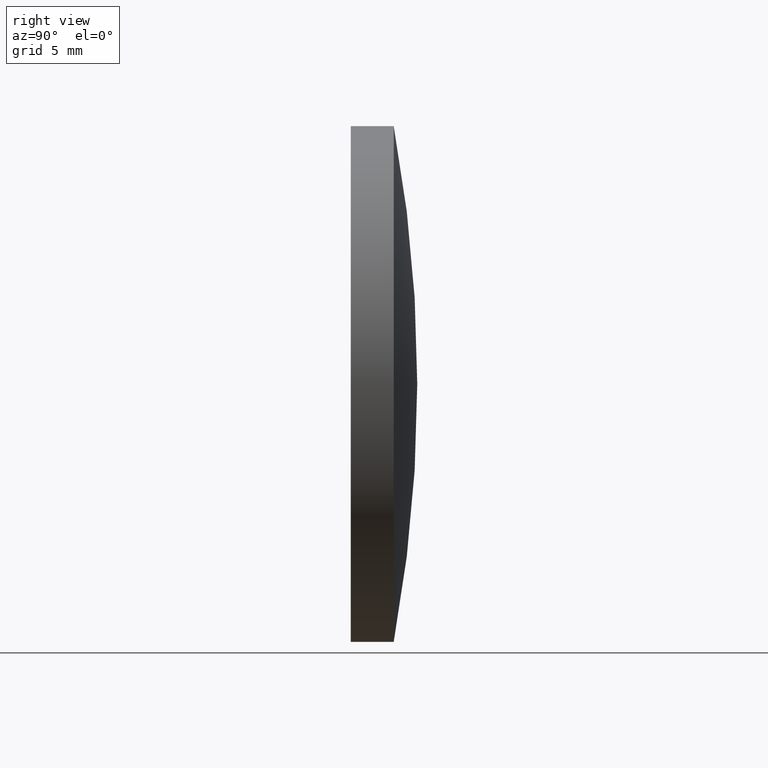
[diagram: clean part render]
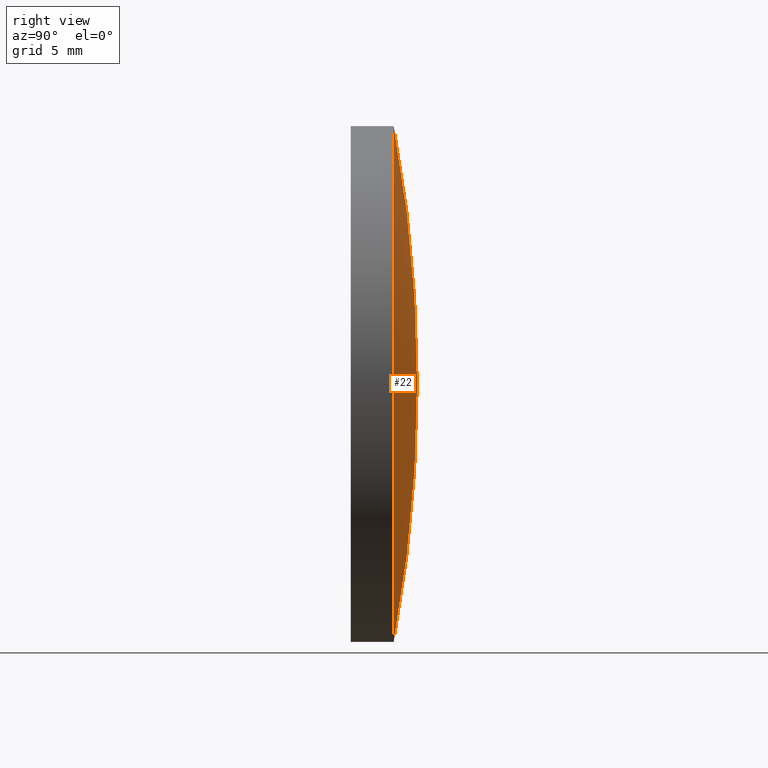
[diagram: same view with one face highlighted and labeled with its STEP entity id]
A machine part, right view. The second image highlights one B-rep face of the part: STEP entity #22.
In plain terms, the highlighted toroidal blend (fillet) surface has major radius 0.0166 mm and minor (blend) radius 82.62 mm.
Its self-contained STEP definition (entity closure, byte-faithful):
#12 = VERTEX_POINT ( 'NONE', #33 ) ;
#14 = EDGE_LOOP ( 'NONE', ( #61, #186, #110 ) ) ;
#22 = ADVANCED_FACE ( 'NONE', ( #197 ), #24, .T. ) ;
#24 = TOROIDAL_SURFACE ( 'NONE', #124, 0.01660348570795607687, 82.62000000000000455 ) ;
#32 = VERTEX_POINT ( 'NONE', #177 ) ;
#33 = CARTESIAN_POINT ( 'NONE',  ( 0.000000000000000000, 3.870000000000000107, 0.000000000000000000 ) ) ;
#35 = DIRECTION ( 'NONE',  ( 0.000000000000000000, 0.000000000000000000, 1.000000000000000000 ) ) ;
#48 = DIRECTION ( 'NONE',  ( -0.000000000000000000, 1.000000000000000000, -0.000000000000000000 ) ) ;
#54 = CIRCLE ( 'NONE', #174, 15.00000000000000000 ) ;
#59 = DIRECTION ( 'NONE',  ( 0.000000000000000000, 0.000000000000000000, 1.000000000000000000 ) ) ;
#61 = ORIENTED_EDGE ( 'NONE', *, *, #71, .T. ) ;
#71 = EDGE_CURVE ( 'NONE', #94, #32, #54, .T. ) ;
#78 = EDGE_CURVE ( 'NONE', #94, #12, #111, .T. ) ;
#80 = CARTESIAN_POINT ( 'NONE',  ( 2.033340562693723258E-18, -78.74999833166459950, -0.01660348570795607687 ) ) ;
#81 = DIRECTION ( 'NONE',  ( -0.000000000000000000, 1.000000000000000000, -0.000000000000000000 ) ) ;
#92 = CIRCLE ( 'NONE', #162, 82.62000000000000455 ) ;
#94 = VERTEX_POINT ( 'NONE', #163 ) ;
#97 = CARTESIAN_POINT ( 'NONE',  ( 0.000000000000000000, -78.74999833166459950, 0.01660348570795607687 ) ) ;
#110 = ORIENTED_EDGE ( 'NONE', *, *, #78, .F. ) ;
#111 = CIRCLE ( 'NONE', #194, 82.62000000000000455 ) ;
#114 = DIRECTION ( 'NONE',  ( -1.000000000000000000, 0.000000000000000000, 0.000000000000000000 ) ) ;
#124 = AXIS2_PLACEMENT_3D ( 'NONE', #148, #81, #59 ) ;
#135 = DIRECTION ( 'NONE',  ( 1.224646799147353207E-16, 0.000000000000000000, -1.000000000000000000 ) ) ;
#148 = CARTESIAN_POINT ( 'NONE',  ( 0.000000000000000000, -78.74999833166459950, 0.000000000000000000 ) ) ;
#155 = EDGE_CURVE ( 'NONE', #32, #12, #92, .T. ) ;
#156 = CARTESIAN_POINT ( 'NONE',  ( 0.000000000000000000, 2.499999999999998224, 0.000000000000000000 ) ) ;
#162 = AXIS2_PLACEMENT_3D ( 'NONE', #80, #172, #135 ) ;
#163 = CARTESIAN_POINT ( 'NONE',  ( 0.000000000000000000, 2.500000000000000444, 15.00000000000000355 ) ) ;
#172 = DIRECTION ( 'NONE',  ( 1.000000000000000000, 0.000000000000000000, 1.224646799147353207E-16 ) ) ;
#174 = AXIS2_PLACEMENT_3D ( 'NONE', #156, #48, #35 ) ;
#177 = CARTESIAN_POINT ( 'NONE',  ( 1.836970198721030378E-15, 2.500000000000000444, -15.00000000000000355 ) ) ;
#179 = DIRECTION ( 'NONE',  ( 0.000000000000000000, 0.000000000000000000, 1.000000000000000000 ) ) ;
#186 = ORIENTED_EDGE ( 'NONE', *, *, #155, .T. ) ;
#194 = AXIS2_PLACEMENT_3D ( 'NONE', #97, #114, #179 ) ;
#197 = FACE_OUTER_BOUND ( 'NONE', #14, .T. ) ;